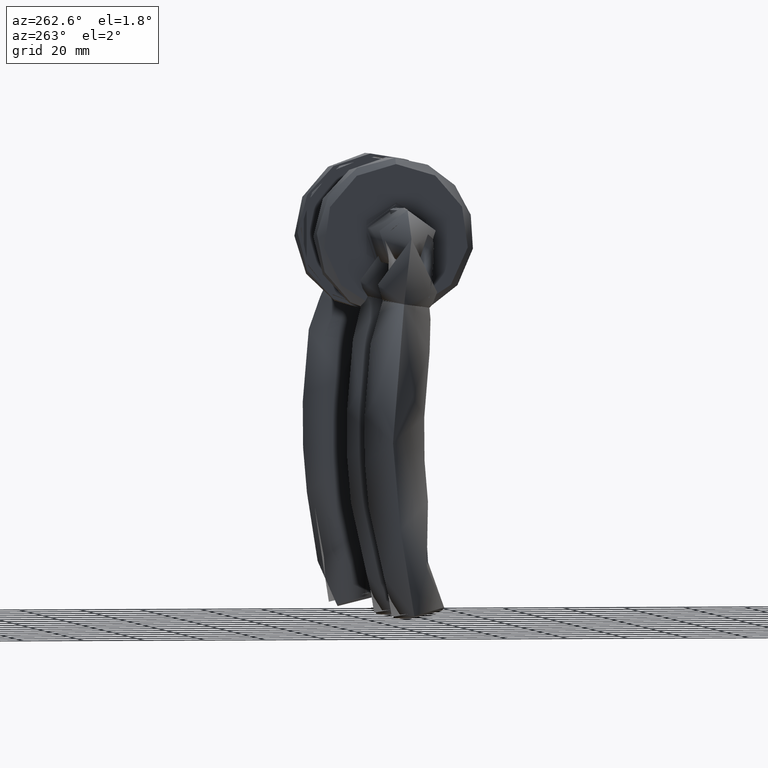
[diagram: clean part render]
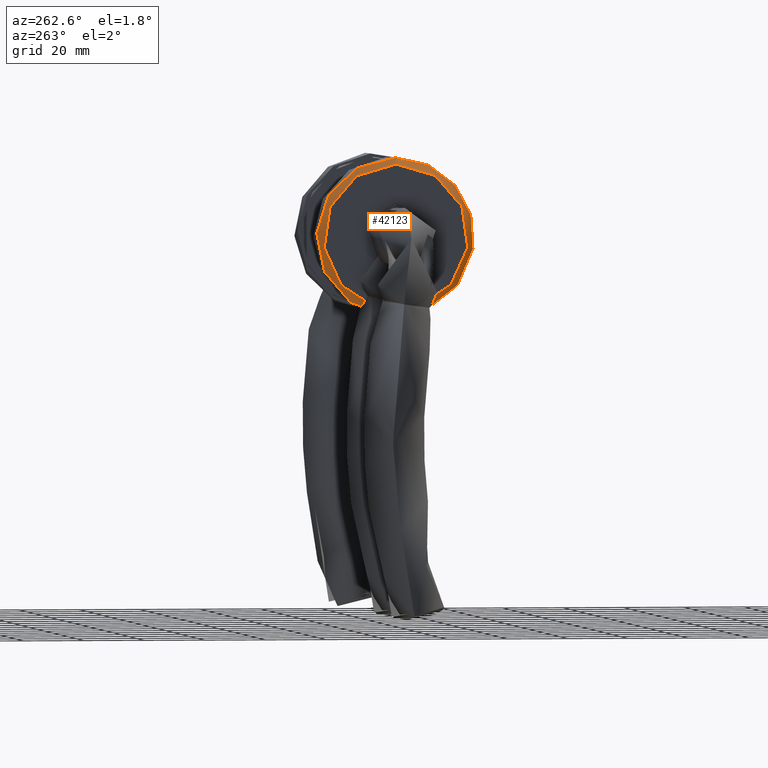
[diagram: same view with one face highlighted and labeled with its STEP entity id]
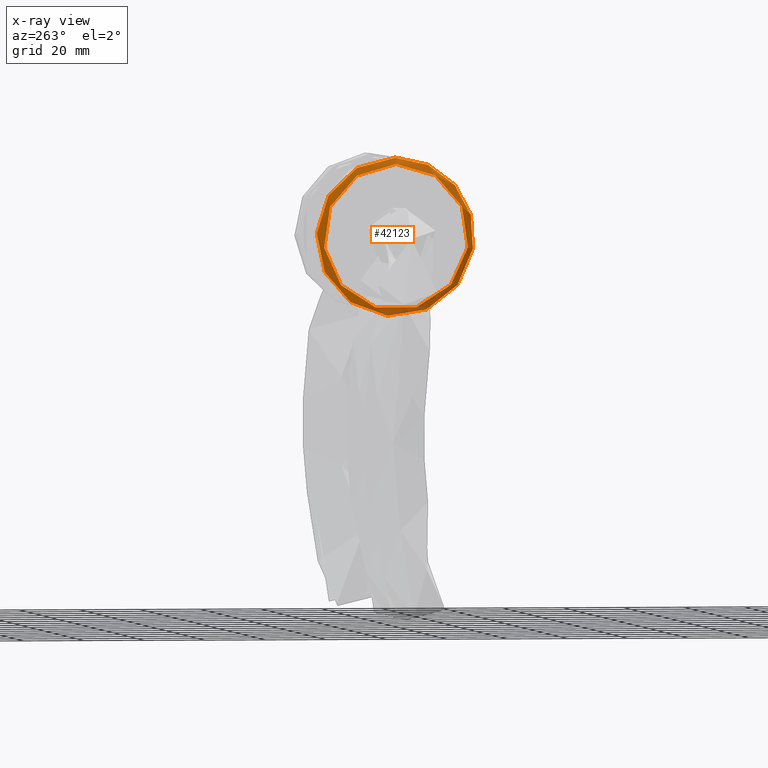
[diagram: x-ray of the same camera — body ghosted, the highlighted face saturated]
A machine part, auxiliary view. The second image highlights one B-rep face of the part: STEP entity #42123.
The next image is the same camera in x-ray: the body ghosted, the highlighted face saturated — about 12% of this face is hidden behind the body in this view.
In plain terms, the highlighted toroidal blend (fillet) surface has major radius 24 mm and minor (blend) radius 2 mm.
Its self-contained STEP definition (entity closure, byte-faithful):
#790 = EDGE_LOOP ( 'NONE', ( #4567 ) ) ;
#2309 = AXIS2_PLACEMENT_3D ( 'NONE', #24391, #46708, #70038 ) ;
#4567 = ORIENTED_EDGE ( 'NONE', *, *, #52152, .F. ) ;
#6916 = AXIS2_PLACEMENT_3D ( 'NONE', #61139, #32280, #27036 ) ;
#9167 = CARTESIAN_POINT ( 'NONE',  ( 26.00000000000000400, 0.0000000000000000000, 8.500000000000000000 ) ) ;
#12075 = FACE_OUTER_BOUND ( 'NONE', #790, .T. ) ;
#24391 = CARTESIAN_POINT ( 'NONE',  ( 0.0000000000000000000, 0.0000000000000000000, 10.50000000000000000 ) ) ;
#27036 = DIRECTION ( 'NONE',  ( 1.000000000000000000, 0.0000000000000000000, 0.0000000000000000000 ) ) ;
#32280 = DIRECTION ( 'NONE',  ( 0.0000000000000000000, 0.0000000000000000000, 1.000000000000000000 ) ) ;
#33303 = EDGE_LOOP ( 'NONE', ( #71301 ) ) ;
#34286 = AXIS2_PLACEMENT_3D ( 'NONE', #44587, #67427, #56631 ) ;
#42123 = ADVANCED_FACE ( 'NONE', ( #73217, #12075 ), #71333, .T. ) ;
#44587 = CARTESIAN_POINT ( 'NONE',  ( 0.0000000000000000000, 0.0000000000000000000, 8.500000000000000000 ) ) ;
#46708 = DIRECTION ( 'NONE',  ( 0.0000000000000000000, 0.0000000000000000000, 1.000000000000000000 ) ) ;
#47898 = CIRCLE ( 'NONE', #34286, 26.00000000000000400 ) ;
#52152 = EDGE_CURVE ( 'NONE', #55885, #55885, #61441, .T. ) ;
#54597 = CARTESIAN_POINT ( 'NONE',  ( 24.00000000000000000, 0.0000000000000000000, 10.50000000000000000 ) ) ;
#55885 = VERTEX_POINT ( 'NONE', #54597 ) ;
#56631 = DIRECTION ( 'NONE',  ( 1.000000000000000000, 0.0000000000000000000, 0.0000000000000000000 ) ) ;
#61139 = CARTESIAN_POINT ( 'NONE',  ( 0.0000000000000000000, 0.0000000000000000000, 8.500000000000000000 ) ) ;
#61441 = CIRCLE ( 'NONE', #2309, 24.00000000000000000 ) ;
#67427 = DIRECTION ( 'NONE',  ( -0.0000000000000000000, -0.0000000000000000000, -1.000000000000000000 ) ) ;
#67822 = VERTEX_POINT ( 'NONE', #9167 ) ;
#70038 = DIRECTION ( 'NONE',  ( 1.000000000000000000, 0.0000000000000000000, 0.0000000000000000000 ) ) ;
#70612 = EDGE_CURVE ( 'NONE', #67822, #67822, #47898, .T. ) ;
#71301 = ORIENTED_EDGE ( 'NONE', *, *, #70612, .F. ) ;
#71333 = TOROIDAL_SURFACE ( 'NONE', #6916, 24.00000000000000000, 2.000000000000000000 ) ;
#73217 = FACE_OUTER_BOUND ( 'NONE', #33303, .T. ) ;